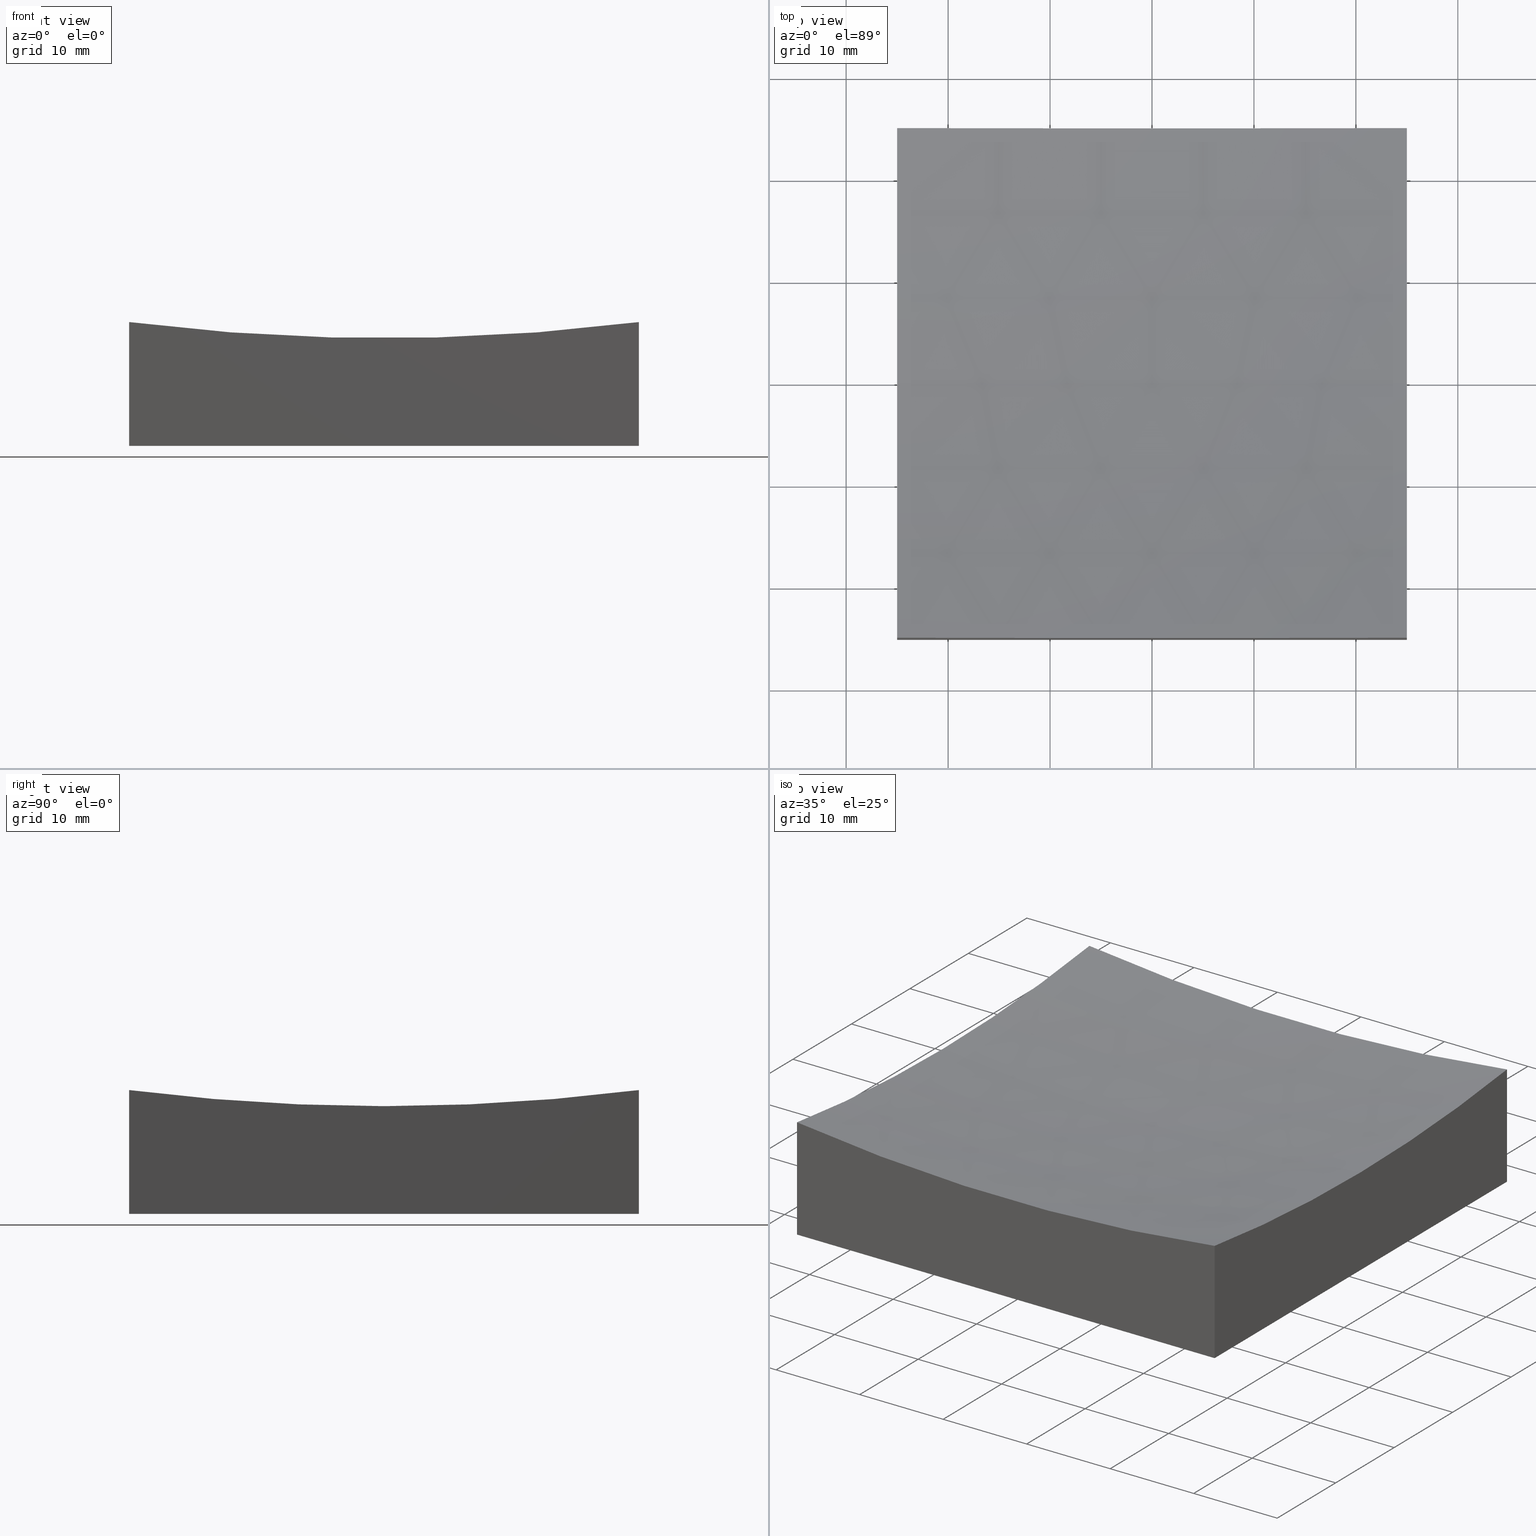
[diagram: canonical four-view strip — front | top / right | iso, engineering-drawing reading convention]
A machine part, canonical four-view strip (front | top / right | iso — engineering-drawing reading convention). The complete STEP part file that produces these views, byte-faithful:
ISO-10303-21;
HEADER;
FILE_DESCRIPTION (( 'STEP AP214' ),
    '1' );
FILE_NAME ('270052.STEP',
    '2020-06-08T03:40:21',
    ( '' ),
    ( '' ),
    'SwSTEP 2.0',
    'SolidWorks 2019',
    '' );
FILE_SCHEMA (( 'AUTOMOTIVE_DESIGN' ));
ENDSEC;

DATA;
#1 = CARTESIAN_POINT ( 'NONE',  ( 2.559511810217968067E-14, 0.0000000000000000000, 209.0000000000000284 ) ) ;
#2 = MECHANICAL_DESIGN_GEOMETRIC_PRESENTATION_REPRESENTATION (  '', ( #224 ), #150 ) ;
#3 = VERTEX_POINT ( 'NONE', #214 ) ;
#4 = DIRECTION ( 'NONE',  ( -1.000000000000000000, 0.0000000000000000000, -0.0000000000000000000 ) ) ;
#5 = LINE ( 'NONE', #128, #103 ) ;
#6 = PRODUCT_CONTEXT ( 'NONE', #82, 'mechanical' ) ;
#7 = LINE ( 'NONE', #152, #205 ) ;
#8 = UNCERTAINTY_MEASURE_WITH_UNIT (LENGTH_MEASURE( 1.000000000000000082E-05 ), #69, 'distance_accuracy_value', 'NONE');
#9 = DIRECTION ( 'NONE',  ( 0.0000000000000000000, 1.000000000000000000, 0.0000000000000000000 ) ) ;
#10 = PRODUCT_DEFINITION_FORMATION_WITH_SPECIFIED_SOURCE ( '�κ�', '', #120, .NOT_KNOWN. ) ;
#11 = ORIENTED_EDGE ( 'NONE', *, *, #15, .T. ) ;
#12 = CARTESIAN_POINT ( 'NONE',  ( 7.621237128813795230E-14, 0.0000000000000000000, 9.000000000000007105 ) ) ;
#13 = ORIENTED_EDGE ( 'NONE', *, *, #206, .T. ) ;
#14 = DIRECTION ( 'NONE',  ( -6.993747673752625204E-17, 1.000000000000000000, 0.0000000000000000000 ) ) ;
#15 = EDGE_CURVE ( 'NONE', #228, #64, #40, .T. ) ;
#16 = ORIENTED_EDGE ( 'NONE', *, *, #90, .T. ) ;
#17 =( NAMED_UNIT ( * ) PLANE_ANGLE_UNIT ( ) SI_UNIT ( $, .RADIAN. ) );
#18 = DIRECTION ( 'NONE',  ( 0.0000000000000000000, -1.000000000000000000, 0.0000000000000000000 ) ) ;
#19 = EDGE_CURVE ( 'NONE', #3, #59, #160, .T. ) ;
#20 = CIRCLE ( 'NONE', #30, 198.4313483298443259 ) ;
#21 =( NAMED_UNIT ( * ) SI_UNIT ( $, .STERADIAN. ) SOLID_ANGLE_UNIT ( ) );
#22 = CARTESIAN_POINT ( 'NONE',  ( -25.00000000000000355, 3.061616997868391326E-15, 10.56865167015569362 ) ) ;
#23 = DIRECTION ( 'NONE',  ( -6.993747673752625204E-17, 1.000000000000000000, 0.0000000000000000000 ) ) ;
#24 = DIRECTION ( 'NONE',  ( 1.000000000000000000, 0.0000000000000000000, 0.0000000000000000000 ) ) ;
#25 = SHAPE_DEFINITION_REPRESENTATION ( #26, #250 ) ;
#26 = PRODUCT_DEFINITION_SHAPE ( 'NONE', 'NONE',  #37 ) ;
#27 = DIRECTION ( 'NONE',  ( 1.000000000000000000, 0.0000000000000000000, 0.0000000000000000000 ) ) ;
#28 = EDGE_CURVE ( 'NONE', #137, #64, #54, .T. ) ;
#29 = SPHERICAL_SURFACE ( 'NONE', #208, 200.0000000000000000 ) ;
#30 = AXIS2_PLACEMENT_3D ( 'NONE', #168, #207, #32 ) ;
#31 = CARTESIAN_POINT ( 'NONE',  ( 24.99999999999999289, 0.0000000000000000000, 10.56865167015569362 ) ) ;
#32 = DIRECTION ( 'NONE',  ( 0.0000000000000000000, 0.0000000000000000000, 1.000000000000000000 ) ) ;
#33 = CIRCLE ( 'NONE', #222, 198.4313483298443259 ) ;
#34 = ORIENTED_EDGE ( 'NONE', *, *, #130, .T. ) ;
#35 = DIRECTION ( 'NONE',  ( 0.0000000000000000000, -0.0000000000000000000, 1.000000000000000000 ) ) ;
#36 = ORIENTED_EDGE ( 'NONE', *, *, #206, .F. ) ;
#37 = PRODUCT_DEFINITION ( 'δ֪', '', #10, #229 ) ;
#38 = DIRECTION ( 'NONE',  ( -0.0000000000000000000, -0.0000000000000000000, -1.000000000000000000 ) ) ;
#39 = EDGE_LOOP ( 'NONE', ( #191, #134, #63, #233, #145 ) ) ;
#40 = CIRCLE ( 'NONE', #215, 198.4313483298443259 ) ;
#41 = CARTESIAN_POINT ( 'NONE',  ( -25.00000000000000355, -1.734723475976809067E-15, 209.0000000000000284 ) ) ;
#42 = DIRECTION ( 'NONE',  ( -6.993747673752625204E-17, 1.000000000000000000, 0.0000000000000000000 ) ) ;
#43 = VECTOR ( 'NONE', #171, 1000.000000000000000 ) ;
#44 = SURFACE_SIDE_STYLE ('',( #203 ) ) ;
#45 = DIRECTION ( 'NONE',  ( 1.000000000000000000, 6.938893903907228378E-17, -0.0000000000000000000 ) ) ;
#46 = VERTEX_POINT ( 'NONE', #178 ) ;
#47 =( NAMED_UNIT ( * ) PLANE_ANGLE_UNIT ( ) SI_UNIT ( $, .RADIAN. ) );
#48 = CARTESIAN_POINT ( 'NONE',  ( -25.00000000000000000, -25.00000000000000711, 0.0000000000000000000 ) ) ;
#49 = CARTESIAN_POINT ( 'NONE',  ( 0.0000000000000000000, 0.0000000000000000000, 0.0000000000000000000 ) ) ;
#50 = ADVANCED_FACE ( 'NONE', ( #251 ), #101, .T. ) ;
#51 = UNCERTAINTY_MEASURE_WITH_UNIT (LENGTH_MEASURE( 1.000000000000000082E-05 ), #183, 'distance_accuracy_value', 'NONE');
#52 = MANIFOLD_SOLID_BREP ( '�г�-��ת2', #74 ) ;
#53 = FACE_OUTER_BOUND ( 'NONE', #193, .T. ) ;
#54 = CIRCLE ( 'NONE', #195, 200.0000000000000000 ) ;
#55 = DIRECTION ( 'NONE',  ( 0.0000000000000000000, 0.0000000000000000000, 1.000000000000000000 ) ) ;
#56 = EDGE_CURVE ( 'NONE', #209, #46, #33, .T. ) ;
#57 = EDGE_LOOP ( 'NONE', ( #238, #16, #119, #244, #11 ) ) ;
#58 = CARTESIAN_POINT ( 'NONE',  ( -25.00000000000000355, 24.99999999999999645, 50.00000000000000000 ) ) ;
#59 = VERTEX_POINT ( 'NONE', #216 ) ;
#60 = AXIS2_PLACEMENT_3D ( 'NONE', #58, #192, #35 ) ;
#61 = EDGE_CURVE ( 'NONE', #127, #209, #115, .T. ) ;
#62 = DIRECTION ( 'NONE',  ( 1.000000000000000000, 6.938893903907228378E-17, -0.0000000000000000000 ) ) ;
#63 = ORIENTED_EDGE ( 'NONE', *, *, #133, .F. ) ;
#64 = VERTEX_POINT ( 'NONE', #31 ) ;
#65 =( NAMED_UNIT ( * ) SI_UNIT ( $, .STERADIAN. ) SOLID_ANGLE_UNIT ( ) );
#66 = CARTESIAN_POINT ( 'NONE',  ( 24.99999999999999645, 24.99999999999999645, 50.00000000000000000 ) ) ;
#67 = DIRECTION ( 'NONE',  ( -0.0000000000000000000, -0.0000000000000000000, -1.000000000000000000 ) ) ;
#68 = AXIS2_PLACEMENT_3D ( 'NONE', #88, #45, #166 ) ;
#69 =( LENGTH_UNIT ( ) NAMED_UNIT ( * ) SI_UNIT ( .MILLI., .METRE. ) );
#70 = DIRECTION ( 'NONE',  ( 1.000000000000000000, 0.0000000000000000000, 1.387778780781445676E-16 ) ) ;
#71 = AXIS2_PLACEMENT_3D ( 'NONE', #226, #9, #55 ) ;
#72 = CARTESIAN_POINT ( 'NONE',  ( 2.559511810217968067E-14, 0.0000000000000000000, 209.0000000000000284 ) ) ;
#73 = PLANE ( 'NONE',  #91 ) ;
#74 = CLOSED_SHELL ( 'NONE', ( #84, #116, #252, #113, #148, #50, #225 ) ) ;
#75 = CARTESIAN_POINT ( 'NONE',  ( -25.00000000000000355, 24.99999999999999645, 50.00000000000000000 ) ) ;
#76 = EDGE_LOOP ( 'NONE', ( #36, #196, #180, #175, #34 ) ) ;
#77 = EDGE_CURVE ( 'NONE', #3, #46, #177, .T. ) ;
#78 = CARTESIAN_POINT ( 'NONE',  ( 24.99999999999999645, 24.99999999999999645, 0.0000000000000000000 ) ) ;
#79 = EDGE_LOOP ( 'NONE', ( #149, #99, #117, #106 ) ) ;
#80 = STYLED_ITEM ( 'NONE', ( #104 ), #250 ) ;
#81 = CARTESIAN_POINT ( 'NONE',  ( -25.00000000000000355, -1.734723475976809067E-15, 209.0000000000000284 ) ) ;
#82 = APPLICATION_CONTEXT ( 'automotive_design' ) ;
#83 = CARTESIAN_POINT ( 'NONE',  ( 0.0000000000000000000, 0.0000000000000000000, 0.0000000000000000000 ) ) ;
#84 = ADVANCED_FACE ( 'NONE', ( #167 ), #29, .F. ) ;
#85 =( LENGTH_UNIT ( ) NAMED_UNIT ( * ) SI_UNIT ( .MILLI., .METRE. ) );
#86 = COLOUR_RGB ( '',1.000000000000000000, 1.000000000000000000, 1.000000000000000000 ) ;
#87 = SURFACE_STYLE_FILL_AREA ( #146 ) ;
#88 = CARTESIAN_POINT ( 'NONE',  ( -25.00000000000000355, 24.99999999999999645, 50.00000000000000000 ) ) ;
#89 = ORIENTED_EDGE ( 'NONE', *, *, #19, .T. ) ;
#90 = EDGE_CURVE ( 'NONE', #137, #209, #102, .T. ) ;
#91 = AXIS2_PLACEMENT_3D ( 'NONE', #223, #92, #151 ) ;
#92 = DIRECTION ( 'NONE',  ( 0.0000000000000000000, 1.000000000000000000, 0.0000000000000000000 ) ) ;
#93 = DIRECTION ( 'NONE',  ( -0.0000000000000000000, 1.000000000000000000, 0.0000000000000000000 ) ) ;
#94 = EDGE_CURVE ( 'NONE', #95, #59, #7, .T. ) ;
#95 = VERTEX_POINT ( 'NONE', #132 ) ;
#96 = CARTESIAN_POINT ( 'NONE',  ( 25.00000000000000000, -25.00000000000000711, 50.00000000000000000 ) ) ;
#97 = ORIENTED_EDGE ( 'NONE', *, *, #94, .F. ) ;
#98 = PLANE ( 'NONE',  #230 ) ;
#99 = ORIENTED_EDGE ( 'NONE', *, *, #133, .T. ) ;
#100 = EDGE_CURVE ( 'NONE', #228, #127, #20, .T. ) ;
#101 = PLANE ( 'NONE',  #182 ) ;
#102 = CIRCLE ( 'NONE', #239, 200.0000000000000000 ) ;
#103 = VECTOR ( 'NONE', #24, 1000.000000000000000 ) ;
#104 = PRESENTATION_STYLE_ASSIGNMENT (( #165 ) ) ;
#105 =( NAMED_UNIT ( * ) PLANE_ANGLE_UNIT ( ) SI_UNIT ( $, .RADIAN. ) );
#106 = ORIENTED_EDGE ( 'NONE', *, *, #130, .F. ) ;
#107 = SURFACE_STYLE_USAGE ( .BOTH. , #202 ) ;
#108 = APPLICATION_PROTOCOL_DEFINITION ( 'draft international standard', 'automotive_design', 1998, #82 ) ;
#109 = SPHERICAL_SURFACE ( 'NONE', #135, 200.0000000000000000 ) ;
#110 = DIRECTION ( 'NONE',  ( 1.000000000000000000, 0.0000000000000000000, 1.387778780781445676E-16 ) ) ;
#111 = PRESENTATION_LAYER_ASSIGNMENT (  '', '', ( #80 ) ) ;
#112 = APPLICATION_CONTEXT ( 'automotive_design' ) ;
#113 = ADVANCED_FACE ( 'NONE', ( #242 ), #73, .F. ) ;
#114 = DIRECTION ( 'NONE',  ( 1.000000000000000000, 0.0000000000000000000, 0.0000000000000000000 ) ) ;
#115 = CIRCLE ( 'NONE', #249, 198.4313483298443259 ) ;
#116 = ADVANCED_FACE ( 'NONE', ( #53 ), #131, .T. ) ;
#117 = ORIENTED_EDGE ( 'NONE', *, *, #221, .F. ) ;
#118 = LINE ( 'NONE', #96, #43 ) ;
#119 = ORIENTED_EDGE ( 'NONE', *, *, #61, .F. ) ;
#120 = PRODUCT ( '270052', '270052', '', ( #6 ) ) ;
#121 = LINE ( 'NONE', #163, #144 ) ;
#122 = ORIENTED_EDGE ( 'NONE', *, *, #77, .T. ) ;
#123 = PRESENTATION_LAYER_ASSIGNMENT (  '', '', ( #224 ) ) ;
#124 = CARTESIAN_POINT ( 'NONE',  ( 2.559511810217968067E-14, 0.0000000000000000000, 209.0000000000000284 ) ) ;
#125 = EDGE_CURVE ( 'NONE', #64, #3, #199, .T. ) ;
#126 = FACE_OUTER_BOUND ( 'NONE', #246, .T. ) ;
#127 = VERTEX_POINT ( 'NONE', #227 ) ;
#128 = CARTESIAN_POINT ( 'NONE',  ( -25.00000000000000000, -25.00000000000000711, 0.0000000000000000000 ) ) ;
#129 = DIRECTION ( 'NONE',  ( 0.0000000000000000000, 0.0000000000000000000, 1.000000000000000000 ) ) ;
#130 = EDGE_CURVE ( 'NONE', #95, #232, #156, .T. ) ;
#131 = PLANE ( 'NONE',  #60 ) ;
#132 = CARTESIAN_POINT ( 'NONE',  ( -25.00000000000000355, 24.99999999999999645, 0.0000000000000000000 ) ) ;
#133 = EDGE_CURVE ( 'NONE', #59, #147, #136, .T. ) ;
#134 = ORIENTED_EDGE ( 'NONE', *, *, #181, .T. ) ;
#135 = AXIS2_PLACEMENT_3D ( 'NONE', #1, #143, #70 ) ;
#136 = LINE ( 'NONE', #78, #173 ) ;
#137 = VERTEX_POINT ( 'NONE', #12 ) ;
#138 = CARTESIAN_POINT ( 'NONE',  ( 24.99999999999999645, 24.99999999999999645, 50.00000000000000000 ) ) ;
#139 = ORIENTED_EDGE ( 'NONE', *, *, #221, .T. ) ;
#140 = PRODUCT_RELATED_PRODUCT_CATEGORY ( 'part', '', ( #120 ) ) ;
#141 = DIRECTION ( 'NONE',  ( -6.993747673752625204E-17, 1.000000000000000000, 0.0000000000000000000 ) ) ;
#142 = DIRECTION ( 'NONE',  ( -0.0000000000000000000, -0.0000000000000000000, -1.000000000000000000 ) ) ;
#143 = DIRECTION ( 'NONE',  ( -0.0000000000000000000, 1.000000000000000000, 0.0000000000000000000 ) ) ;
#144 = VECTOR ( 'NONE', #67, 1000.000000000000000 ) ;
#145 = ORIENTED_EDGE ( 'NONE', *, *, #125, .F. ) ;
#146 = FILL_AREA_STYLE ('',( #236 ) ) ;
#147 = VERTEX_POINT ( 'NONE', #231 ) ;
#148 = ADVANCED_FACE ( 'NONE', ( #169 ), #98, .T. ) ;
#149 = ORIENTED_EDGE ( 'NONE', *, *, #94, .T. ) ;
#150 =( GEOMETRIC_REPRESENTATION_CONTEXT ( 3 ) GLOBAL_UNCERTAINTY_ASSIGNED_CONTEXT ( ( #51 ) ) GLOBAL_UNIT_ASSIGNED_CONTEXT ( ( #183, #17, #65 ) ) REPRESENTATION_CONTEXT ( 'NONE', 'WORKASPACE' ) );
#151 = DIRECTION ( 'NONE',  ( 0.0000000000000000000, -0.0000000000000000000, 1.000000000000000000 ) ) ;
#152 = CARTESIAN_POINT ( 'NONE',  ( -25.00000000000000355, 24.99999999999999645, 0.0000000000000000000 ) ) ;
#153 = DIRECTION ( 'NONE',  ( 6.938893903907228378E-17, -1.000000000000000000, 0.0000000000000000000 ) ) ;
#154 = ORIENTED_EDGE ( 'NONE', *, *, #100, .T. ) ;
#155 = VECTOR ( 'NONE', #38, 1000.000000000000000 ) ;
#156 = LINE ( 'NONE', #245, #240 ) ;
#157 = ORIENTED_EDGE ( 'NONE', *, *, #28, .T. ) ;
#158 = CARTESIAN_POINT ( 'NONE',  ( 24.99999999999999645, 1.734723475976805122E-15, 209.0000000000000284 ) ) ;
#159 = DIRECTION ( 'NONE',  ( 1.000000000000000000, 6.938893903907228378E-17, -0.0000000000000000000 ) ) ;
#160 = LINE ( 'NONE', #66, #162 ) ;
#161 = FILL_AREA_STYLE_COLOUR ( '', #188 ) ;
#162 = VECTOR ( 'NONE', #142, 1000.000000000000000 ) ;
#163 = CARTESIAN_POINT ( 'NONE',  ( -25.00000000000000000, -25.00000000000000711, 50.00000000000000000 ) ) ;
#164 = PRESENTATION_STYLE_ASSIGNMENT (( #107 ) ) ;
#165 = SURFACE_STYLE_USAGE ( .BOTH. , #44 ) ;
#166 = DIRECTION ( 'NONE',  ( -6.938893903907228378E-17, 1.000000000000000000, 0.0000000000000000000 ) ) ;
#167 = FACE_OUTER_BOUND ( 'NONE', #57, .T. ) ;
#168 = CARTESIAN_POINT ( 'NONE',  ( 2.559511810217968067E-14, -25.00000000000000711, 209.0000000000000284 ) ) ;
#169 = FACE_OUTER_BOUND ( 'NONE', #39, .T. ) ;
#170 = ORIENTED_EDGE ( 'NONE', *, *, #181, .F. ) ;
#171 = DIRECTION ( 'NONE',  ( -0.0000000000000000000, -0.0000000000000000000, -1.000000000000000000 ) ) ;
#172 = ORIENTED_EDGE ( 'NONE', *, *, #77, .F. ) ;
#173 = VECTOR ( 'NONE', #211, 1000.000000000000000 ) ;
#174 = DIRECTION ( 'NONE',  ( 1.000000000000000000, 6.938893903907228378E-17, -0.0000000000000000000 ) ) ;
#175 = ORIENTED_EDGE ( 'NONE', *, *, #176, .T. ) ;
#176 = EDGE_CURVE ( 'NONE', #46, #95, #243, .T. ) ;
#177 = CIRCLE ( 'NONE', #71, 198.4313483298443259 ) ;
#178 = CARTESIAN_POINT ( 'NONE',  ( -25.00000000000000711, 24.99999999999999645, 12.14980314970470765 ) ) ;
#179 = CARTESIAN_POINT ( 'NONE',  ( 25.00000000000000000, -25.00000000000000711, 12.14980314970470765 ) ) ;
#180 = ORIENTED_EDGE ( 'NONE', *, *, #56, .T. ) ;
#181 = EDGE_CURVE ( 'NONE', #228, #147, #118, .T. ) ;
#182 = AXIS2_PLACEMENT_3D ( 'NONE', #83, #235, #4 ) ;
#183 =( LENGTH_UNIT ( ) NAMED_UNIT ( * ) SI_UNIT ( .MILLI., .METRE. ) );
#184 = FILL_AREA_STYLE ('',( #161 ) ) ;
#185 = PLANE ( 'NONE',  #68 ) ;
#186 = ORIENTED_EDGE ( 'NONE', *, *, #56, .F. ) ;
#187 = DIRECTION ( 'NONE',  ( 1.224646799147353207E-16, 1.000000000000000000, 2.349532963459819023E-32 ) ) ;
#188 = COLOUR_RGB ( '',1.000000000000000000, 1.000000000000000000, 1.000000000000000000 ) ;
#189 = DIRECTION ( 'NONE',  ( -1.000000000000000000, 1.224646799147353207E-16, 0.0000000000000000000 ) ) ;
#190 = UNCERTAINTY_MEASURE_WITH_UNIT (LENGTH_MEASURE( 1.000000000000000082E-05 ), #85, 'distance_accuracy_value', 'NONE');
#191 = ORIENTED_EDGE ( 'NONE', *, *, #15, .F. ) ;
#192 = DIRECTION ( 'NONE',  ( 0.0000000000000000000, 1.000000000000000000, 0.0000000000000000000 ) ) ;
#193 = EDGE_LOOP ( 'NONE', ( #172, #89, #97, #248 ) ) ;
#194 = CARTESIAN_POINT ( 'NONE',  ( 24.99999999999999645, 1.734723475976805122E-15, 209.0000000000000284 ) ) ;
#195 = AXIS2_PLACEMENT_3D ( 'NONE', #124, #18, #198 ) ;
#196 = ORIENTED_EDGE ( 'NONE', *, *, #61, .T. ) ;
#197 = DIRECTION ( 'NONE',  ( 1.000000000000000000, 6.938893903907228378E-17, -0.0000000000000000000 ) ) ;
#198 = DIRECTION ( 'NONE',  ( 0.0000000000000000000, 0.0000000000000000000, -1.000000000000000000 ) ) ;
#199 = CIRCLE ( 'NONE', #210, 198.4313483298443259 ) ;
#200 = AXIS2_PLACEMENT_3D ( 'NONE', #49, #129, #27 ) ;
#201 = EDGE_LOOP ( 'NONE', ( #170, #154, #13, #139 ) ) ;
#202 = SURFACE_SIDE_STYLE ('',( #87 ) ) ;
#203 = SURFACE_STYLE_FILL_AREA ( #184 ) ;
#204 =( NAMED_UNIT ( * ) SI_UNIT ( $, .STERADIAN. ) SOLID_ANGLE_UNIT ( ) );
#205 = VECTOR ( 'NONE', #114, 1000.000000000000000 ) ;
#206 = EDGE_CURVE ( 'NONE', #127, #232, #121, .T. ) ;
#207 = DIRECTION ( 'NONE',  ( 0.0000000000000000000, 1.000000000000000000, 0.0000000000000000000 ) ) ;
#208 = AXIS2_PLACEMENT_3D ( 'NONE', #72, #93, #110 ) ;
#209 = VERTEX_POINT ( 'NONE', #22 ) ;
#210 = AXIS2_PLACEMENT_3D ( 'NONE', #194, #62, #14 ) ;
#211 = DIRECTION ( 'NONE',  ( 6.938893903907228378E-17, -1.000000000000000000, 0.0000000000000000000 ) ) ;
#212 = ORIENTED_EDGE ( 'NONE', *, *, #125, .T. ) ;
#213 = DIRECTION ( 'NONE',  ( -6.938893903907228378E-17, 1.000000000000000000, 0.0000000000000000000 ) ) ;
#214 = CARTESIAN_POINT ( 'NONE',  ( 24.99999999999999645, 24.99999999999999645, 12.14980314970470765 ) ) ;
#215 = AXIS2_PLACEMENT_3D ( 'NONE', #158, #217, #42 ) ;
#216 = CARTESIAN_POINT ( 'NONE',  ( 24.99999999999999645, 24.99999999999999645, 0.0000000000000000000 ) ) ;
#217 = DIRECTION ( 'NONE',  ( 1.000000000000000000, 6.938893903907228378E-17, -0.0000000000000000000 ) ) ;
#218 = APPLICATION_PROTOCOL_DEFINITION ( 'draft international standard', 'automotive_design', 1998, #112 ) ;
#219 =( GEOMETRIC_REPRESENTATION_CONTEXT ( 3 ) GLOBAL_UNCERTAINTY_ASSIGNED_CONTEXT ( ( #8 ) ) GLOBAL_UNIT_ASSIGNED_CONTEXT ( ( #69, #105, #21 ) ) REPRESENTATION_CONTEXT ( 'NONE', 'WORKASPACE' ) );
#220 = ORIENTED_EDGE ( 'NONE', *, *, #90, .F. ) ;
#221 = EDGE_CURVE ( 'NONE', #232, #147, #5, .T. ) ;
#222 = AXIS2_PLACEMENT_3D ( 'NONE', #81, #159, #141 ) ;
#223 = CARTESIAN_POINT ( 'NONE',  ( -25.00000000000000000, -25.00000000000000711, 50.00000000000000000 ) ) ;
#224 = STYLED_ITEM ( 'NONE', ( #164 ), #52 ) ;
#225 = ADVANCED_FACE ( 'NONE', ( #126 ), #109, .F. ) ;
#226 = CARTESIAN_POINT ( 'NONE',  ( 2.559511810217968067E-14, 24.99999999999999645, 209.0000000000000284 ) ) ;
#227 = CARTESIAN_POINT ( 'NONE',  ( -25.00000000000000000, -25.00000000000000711, 12.14980314970470765 ) ) ;
#228 = VERTEX_POINT ( 'NONE', #179 ) ;
#229 = PRODUCT_DEFINITION_CONTEXT ( 'detailed design', #112, 'design' ) ;
#230 = AXIS2_PLACEMENT_3D ( 'NONE', #138, #174, #213 ) ;
#231 = CARTESIAN_POINT ( 'NONE',  ( 25.00000000000000000, -25.00000000000000711, 0.0000000000000000000 ) ) ;
#232 = VERTEX_POINT ( 'NONE', #48 ) ;
#233 = ORIENTED_EDGE ( 'NONE', *, *, #19, .F. ) ;
#234 =( GEOMETRIC_REPRESENTATION_CONTEXT ( 3 ) GLOBAL_UNCERTAINTY_ASSIGNED_CONTEXT ( ( #190 ) ) GLOBAL_UNIT_ASSIGNED_CONTEXT ( ( #85, #47, #204 ) ) REPRESENTATION_CONTEXT ( 'NONE', 'WORKASPACE' ) );
#235 = DIRECTION ( 'NONE',  ( 0.0000000000000000000, 0.0000000000000000000, -1.000000000000000000 ) ) ;
#236 = FILL_AREA_STYLE_COLOUR ( '', #86 ) ;
#237 = FACE_OUTER_BOUND ( 'NONE', #76, .T. ) ;
#238 = ORIENTED_EDGE ( 'NONE', *, *, #28, .F. ) ;
#239 = AXIS2_PLACEMENT_3D ( 'NONE', #241, #187, #189 ) ;
#240 = VECTOR ( 'NONE', #153, 1000.000000000000000 ) ;
#241 = CARTESIAN_POINT ( 'NONE',  ( 2.559511810217968067E-14, 0.0000000000000000000, 209.0000000000000284 ) ) ;
#242 = FACE_OUTER_BOUND ( 'NONE', #201, .T. ) ;
#243 = LINE ( 'NONE', #75, #155 ) ;
#244 = ORIENTED_EDGE ( 'NONE', *, *, #100, .F. ) ;
#245 = CARTESIAN_POINT ( 'NONE',  ( -25.00000000000000355, 24.99999999999999645, 0.0000000000000000000 ) ) ;
#246 = EDGE_LOOP ( 'NONE', ( #220, #157, #212, #122, #186 ) ) ;
#247 = MECHANICAL_DESIGN_GEOMETRIC_PRESENTATION_REPRESENTATION (  '', ( #80 ), #234 ) ;
#248 = ORIENTED_EDGE ( 'NONE', *, *, #176, .F. ) ;
#249 = AXIS2_PLACEMENT_3D ( 'NONE', #41, #197, #23 ) ;
#250 = ADVANCED_BREP_SHAPE_REPRESENTATION ( '270052', ( #52, #200 ), #219 ) ;
#251 = FACE_OUTER_BOUND ( 'NONE', #79, .T. ) ;
#252 = ADVANCED_FACE ( 'NONE', ( #237 ), #185, .F. ) ;
ENDSEC;
END-ISO-10303-21;
